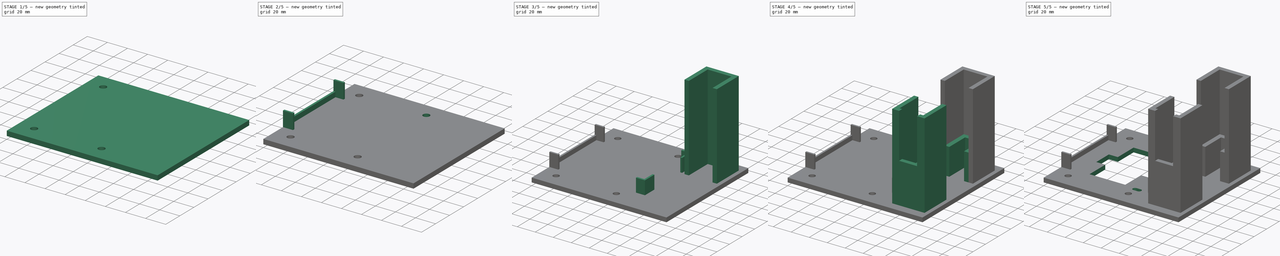
[diagram: build sequence overview — one tinted view per stage of 5, left to right]
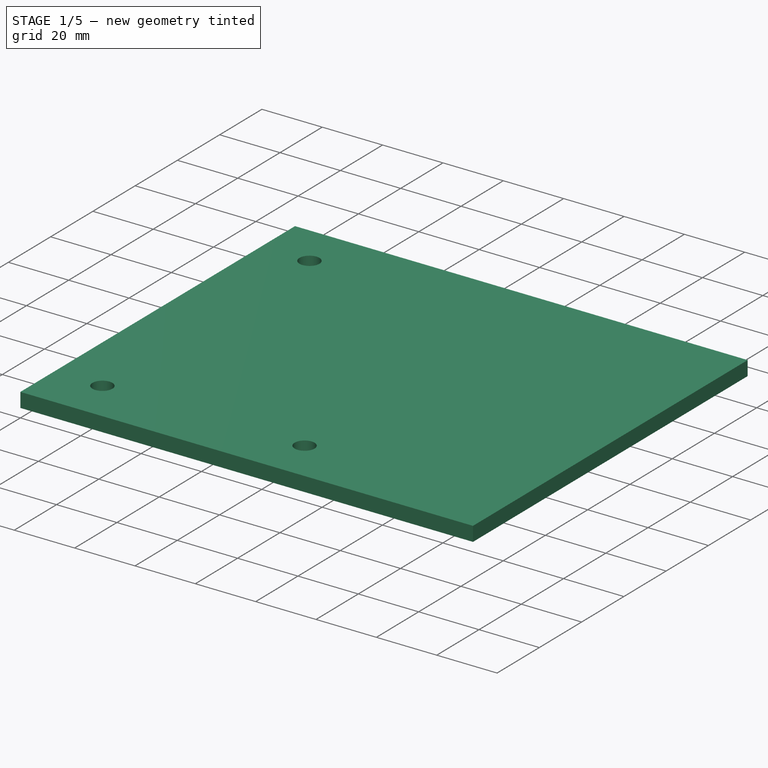
[diagram: stage 1 of 5 — iso view after this stage's code; geometry added in this stage tinted green]
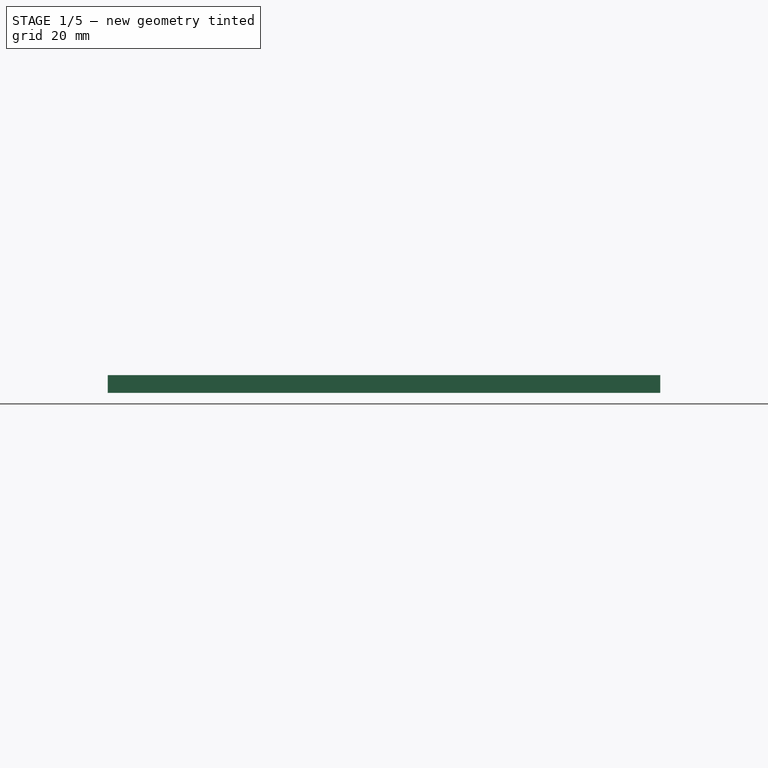
[diagram: stage 1 of 5 — front view after this stage's code; geometry added in this stage tinted green]
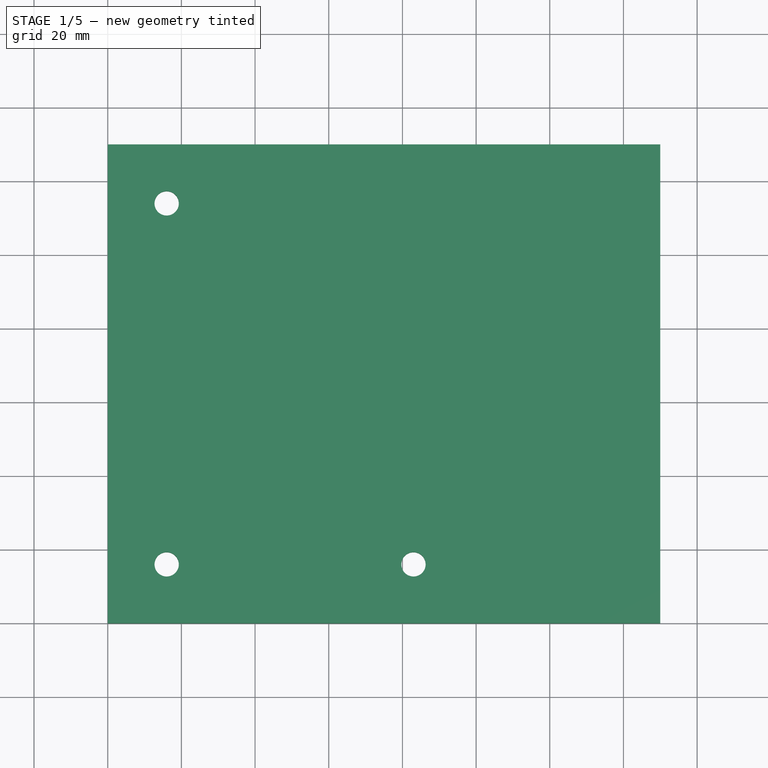
[diagram: stage 1 of 5 — top view after this stage's code; geometry added in this stage tinted green]
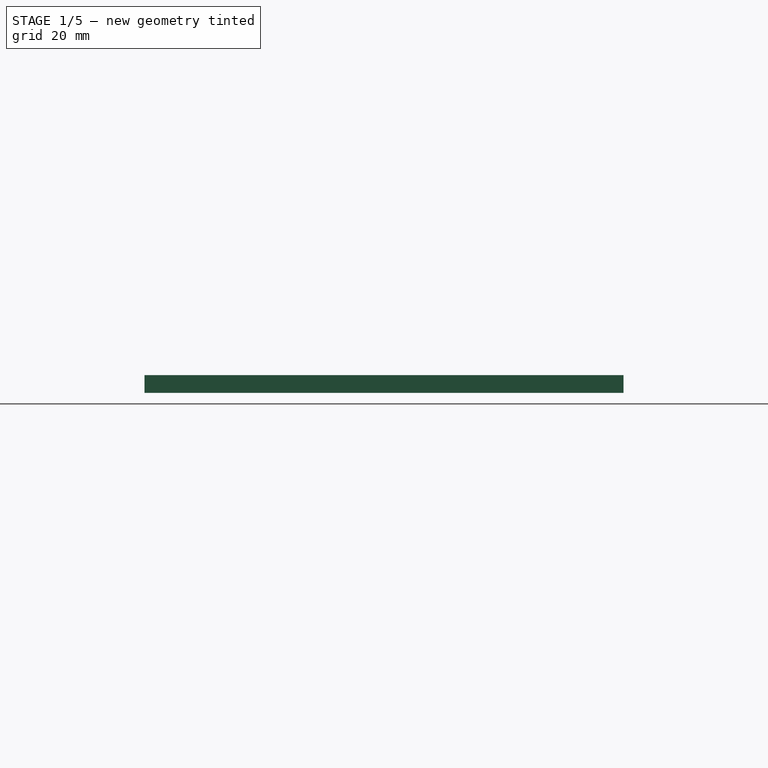
[diagram: stage 1 of 5 — right view after this stage's code; geometry added in this stage tinted green]
FCSTD DOCUMENT  (FreeCAD 0.19R24291 (Git))
Label: tp-link RPi cluster piece 2
License: All rights reserved
LicenseURL: http://en.wikipedia.org/wiki/All_rights_reserved
objects: Sketcher::SketchObject×19, PartDesign::Pad×10, PartDesign::Pocket×9, PartDesign::Body×1
note: 58 computed .brp shape members not serialized (recipe doc carries the construction recipe); baked Part::Feature solids carry a one-line shape summary decoded from their .brp

FEATURE [Sketcher::SketchObject] Sketch
  FullyConstrained = true
  MapMode = 5
  Support = -> [XY_Plane]
  sketch-geometry (4):
    g0: LineSegment StartX=0 StartY=0 StartZ=0 EndX=150 EndY=0 EndZ=0
    g1: LineSegment StartX=150 StartY=0 StartZ=0 EndX=150 EndY=130 EndZ=0
    g2: LineSegment StartX=150 StartY=130 StartZ=0 EndX=0 EndY=130 EndZ=0
    g3: LineSegment StartX=0 StartY=130 StartZ=0 EndX=0 EndY=0 EndZ=0
  constraints (11):
    c: Coincident(g0,g1)
    c: Coincident(g1,g2)
    c: Coincident(g2,g3)
    c: Coincident(g3,g0)
    c: Horizontal(g0)
    c: Horizontal(g2)
    c: Vertical(g1)
    c: Vertical(g3)
    c: Coincident(g0,g-1)
    c: DistanceX(g0,g0) = 150
    c: DistanceY(g3,g3) = 130
FEATURE [PartDesign::Pad] Pad
  Direction = (1,1,1)
  Length = 4.8
  Length2 = 100
  Profile = -> Sketch
  Type = 0
FEATURE [Sketcher::SketchObject] Sketch001
  FullyConstrained = true
  MapMode = 5
  Placement = pos=(0,0,4.8) rot=(0,0,1;0rad)
  Support = -> [Pad]
  sketch-geometry (1):
    g0: Circle CenterX=16 CenterY=16 CenterZ=0 NormalX=0 NormalY=0 NormalZ=1 AngleXU=0 Radius=3.3
  constraints (3):
    c: Diameter(g0) = 6.6
    c: DistanceX(g0) = 16
    c: DistanceY(g0) = 16
FEATURE [PartDesign::Pocket] Pocket
  BaseFeature = -> Pad
  Length = 5
  Length2 = 100
  Profile = -> Sketch001
  Type = 1
FEATURE [Sketcher::SketchObject] MirroredSketch
  FullyConstrained = true
  Placement = pos=(0,0,4.8) rot=(0,0,1;0rad)
  sketch-geometry (1):
    g0: Circle CenterX=16 CenterY=114 CenterZ=0 NormalX=0 NormalY=0 NormalZ=1 AngleXU=0 Radius=3.3
  constraints (3):
    c: Diameter(g0) = 6.6
    c: DistanceX(g0) = 16
    c: DistanceY(g0) = 114
FEATURE [Sketcher::SketchObject] MirroredSketch001
  FullyConstrained = true
  Placement = pos=(0,0,4.8) rot=(0,0,1;0rad)
  sketch-geometry (1):
    g0: Circle CenterX=83 CenterY=16 CenterZ=0 NormalX=0 NormalY=0 NormalZ=1 AngleXU=0 Radius=3.3
  constraints (3):
    c: Diameter(g0) = 6.6
    c: DistanceX(g0) = 83
    c: DistanceY(g0) = 16
FEATURE [Sketcher::SketchObject] MirroredSketch002
  FullyConstrained = true
  Placement = pos=(0,0,4.8) rot=(0,0,1;0rad)
  sketch-geometry (1):
    g0: Circle CenterX=83 CenterY=114 CenterZ=0 NormalX=0 NormalY=0 NormalZ=1 AngleXU=0 Radius=3.3
  constraints (3):
    c: Diameter(g0) = 6.6
    c: DistanceX(g0) = 83
    c: DistanceY(g0) = 114
FEATURE [PartDesign::Pocket] Pocket001
  BaseFeature = -> Pocket
  Length = 5
  Length2 = 100
  Profile = -> MirroredSketch
  Type = 1
FEATURE [PartDesign::Pocket] Pocket002
  BaseFeature = -> Pocket001
  Length = 5
  Length2 = 100
  Profile = -> MirroredSketch001
  Type = 1
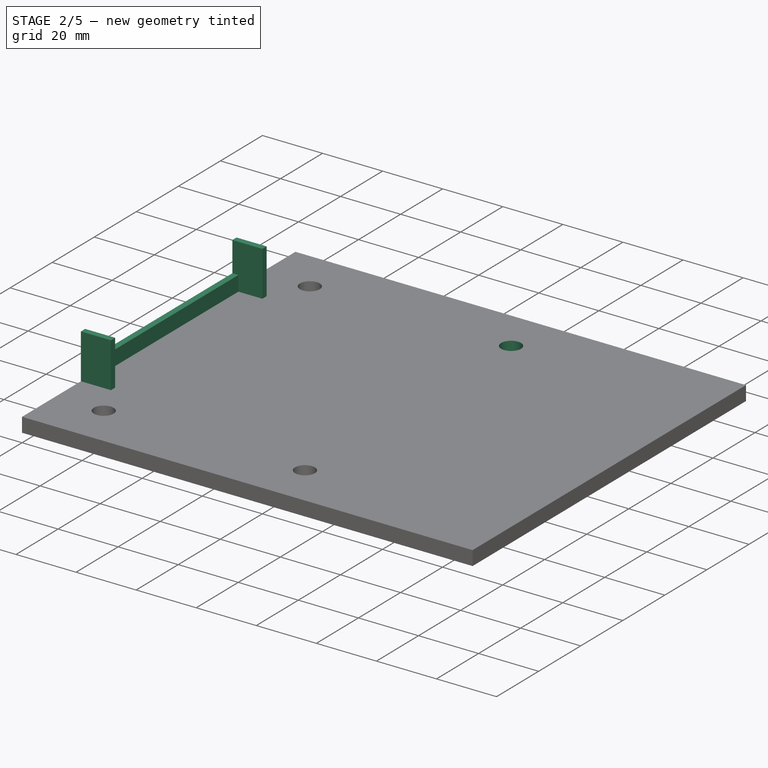
[diagram: stage 2 of 5 — iso view after this stage's code; geometry added in this stage tinted green]
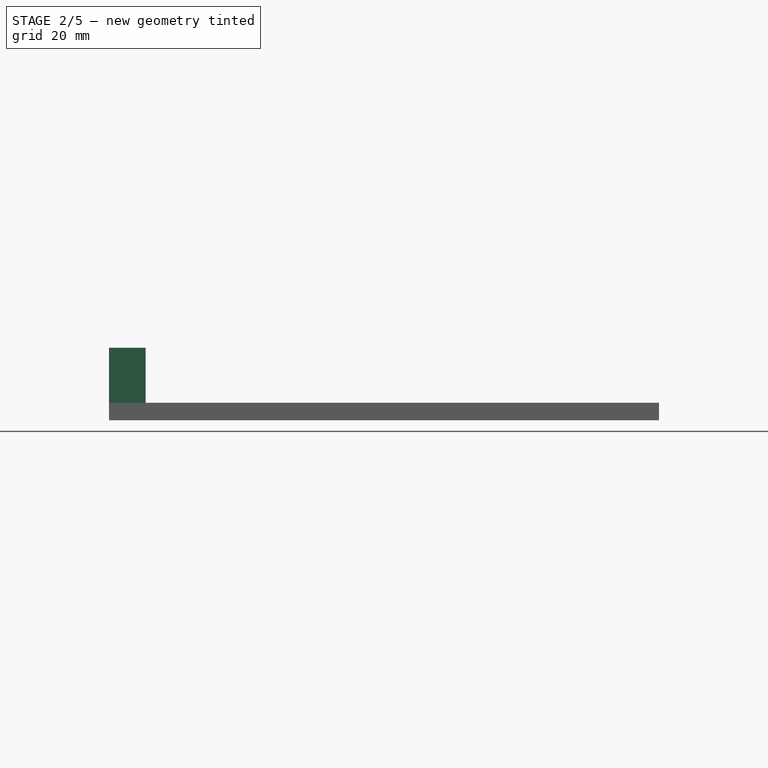
[diagram: stage 2 of 5 — front view after this stage's code; geometry added in this stage tinted green]
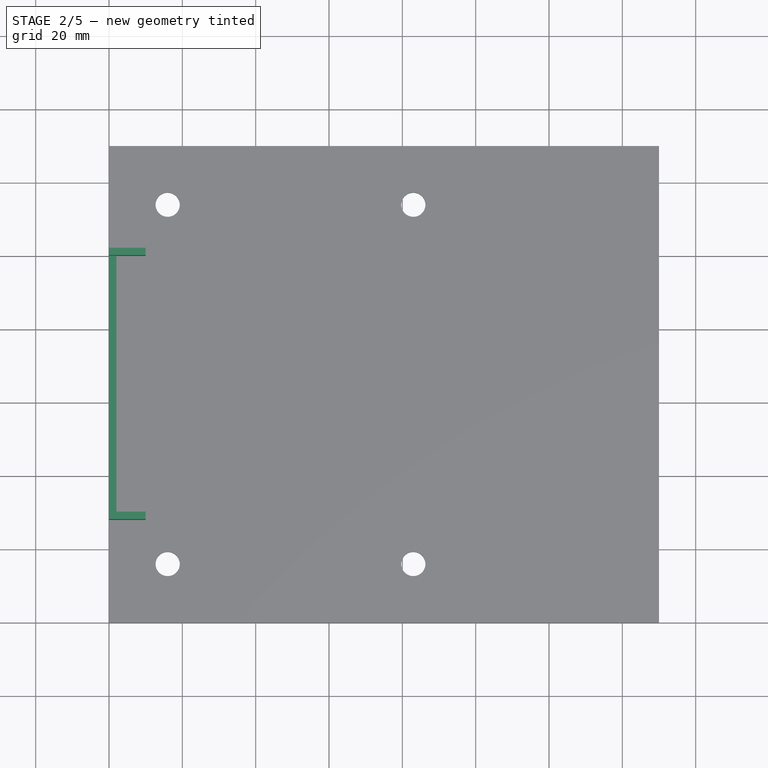
[diagram: stage 2 of 5 — top view after this stage's code; geometry added in this stage tinted green]
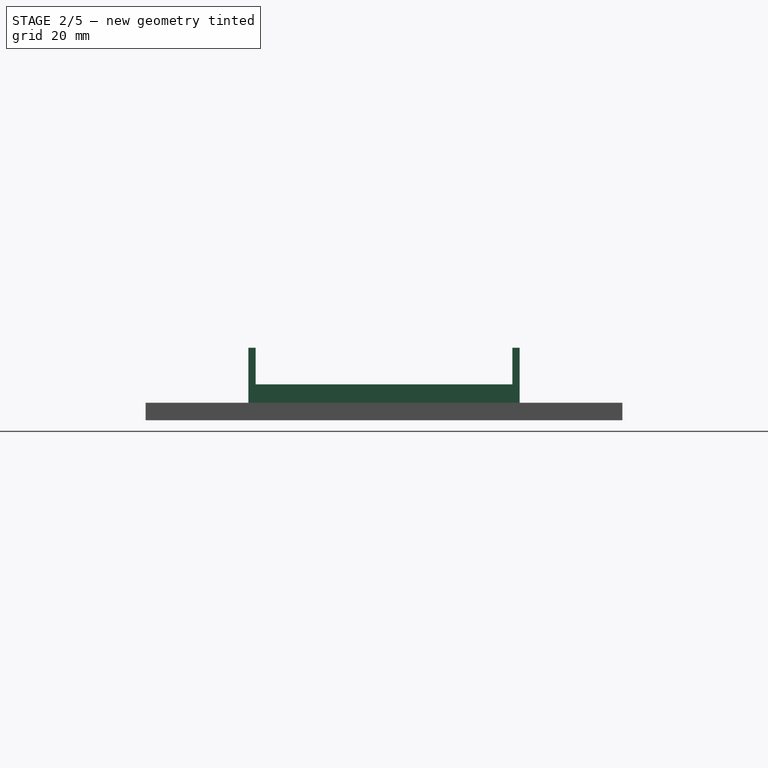
[diagram: stage 2 of 5 — right view after this stage's code; geometry added in this stage tinted green]
FEATURE [PartDesign::Pocket] Pocket003
  BaseFeature = -> Pocket002
  Length = 5
  Length2 = 100
  Profile = -> MirroredSketch002
  Type = 1
FEATURE [Sketcher::SketchObject] Sketch002
  FullyConstrained = true
  MapMode = 5
  Placement = pos=(0,0,4.8) rot=(0,0,1;0rad)
  Support = -> [Pocket003]
  sketch-geometry (4):
    g0: LineSegment StartX=0 StartY=100 StartZ=0 EndX=2 EndY=100 EndZ=0
    g1: LineSegment StartX=2 StartY=100 StartZ=0 EndX=2 EndY=30 EndZ=0
    g2: LineSegment StartX=2 StartY=30 StartZ=0 EndX=0 EndY=30 EndZ=0
    g3: LineSegment StartX=0 StartY=30 StartZ=0 EndX=0 EndY=100 EndZ=0
  constraints (12):
    c: Coincident(g0,g1)
    c: Coincident(g1,g2)
    c: Coincident(g2,g3)
    c: Coincident(g3,g0)
    c: Horizontal(g0)
    c: Horizontal(g2)
    c: Vertical(g1)
    c: Vertical(g3)
    c: PointOnObject(g0,g-2)
    c: DistanceY(g1,g1) = 70
    c: DistanceX(g2,g2) = 2
    c: DistanceY(g1) = 30
FEATURE [PartDesign::Pad] Pad001
  BaseFeature = -> Pocket003
  Direction = (1,1,1)
  Length = 5
  Length2 = 100
  Profile = -> Sketch002
  Type = 0
FEATURE [Sketcher::SketchObject] Sketch003
  FullyConstrained = true
  MapMode = 5
  Placement = pos=(0,0,4.8) rot=(0,0,1;0rad)
  Support = -> [Pad001]
  sketch-geometry (4):
    g0: LineSegment StartX=0 StartY=30 StartZ=0 EndX=10 EndY=30 EndZ=0
    g1: LineSegment StartX=10 StartY=30 StartZ=0 EndX=10 EndY=28 EndZ=0
    g2: LineSegment StartX=10 StartY=28 StartZ=0 EndX=0 EndY=28 EndZ=0
    g3: LineSegment StartX=0 StartY=28 StartZ=0 EndX=0 EndY=30 EndZ=0
  constraints (12):
    c: Coincident(g0,g1)
    c: Coincident(g1,g2)
    c: Coincident(g2,g3)
    c: Coincident(g3,g0)
    c: Horizontal(g0)
    c: Horizontal(g2)
    c: Vertical(g1)
    c: Vertical(g3)
    c: PointOnObject(g0,g-2)
    c: DistanceX(g2,g2) = 10
    c: DistanceY(g1,g1) = 2
    c: DistanceY(g1) = 28
FEATURE [PartDesign::Pad] Pad002
  BaseFeature = -> Pad001
  Direction = (1,1,1)
  Length = 15
  Length2 = 100
  Profile = -> Sketch003
  Type = 0
FEATURE [Sketcher::SketchObject] MirroredSketch003
  FullyConstrained = true
  Placement = pos=(0,0,4.8) rot=(0,0,1;0rad)
  sketch-geometry (4):
    g0: LineSegment StartX=0 StartY=102 StartZ=0 EndX=10 EndY=102 EndZ=0
    g1: LineSegment StartX=10 StartY=102 StartZ=0 EndX=10 EndY=100 EndZ=0
    g2: LineSegment StartX=10 StartY=100 StartZ=0 EndX=0 EndY=100 EndZ=0
    g3: LineSegment StartX=0 StartY=100 StartZ=0 EndX=0 EndY=102 EndZ=0
  constraints (12):
    c: Coincident(g0,g1)
    c: Coincident(g1,g2)
    c: Coincident(g2,g3)
    c: Coincident(g3,g0)
    c: Horizontal(g0)
    c: Horizontal(g2)
    c: Vertical(g1)
    c: Vertical(g3)
    c: PointOnObject(g0,g-2)
    c: DistanceX(g0,g0) = 10
    c: DistanceY(g1,g1) = 2
    c: DistanceY(g0) = 102
FEATURE [PartDesign::Pad] Pad003
  BaseFeature = -> Pad002
  Direction = (1,1,1)
  Length = 15
  Length2 = 100
  Profile = -> MirroredSketch003
  Type = 0
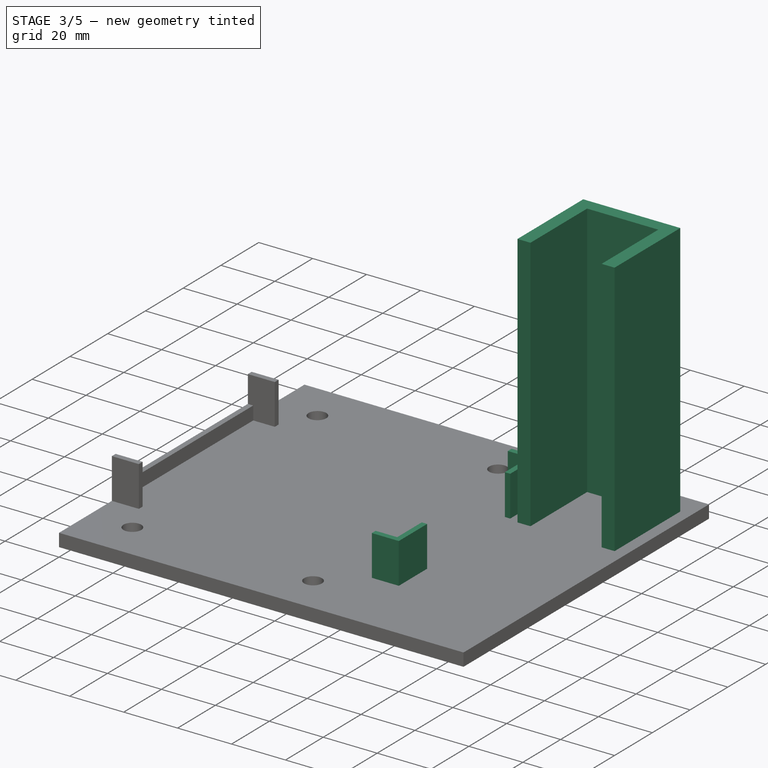
[diagram: stage 3 of 5 — iso view after this stage's code; geometry added in this stage tinted green]
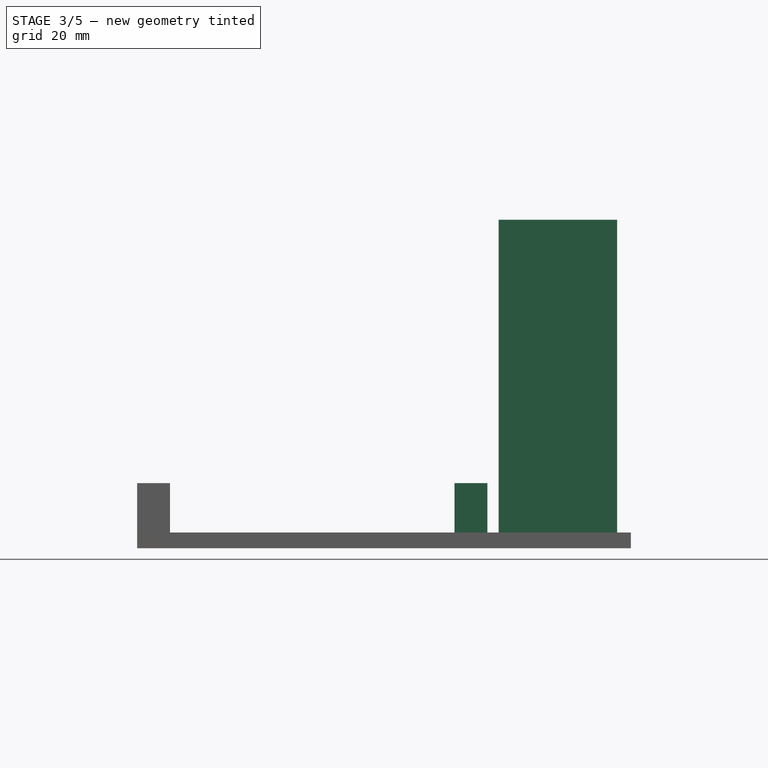
[diagram: stage 3 of 5 — front view after this stage's code; geometry added in this stage tinted green]
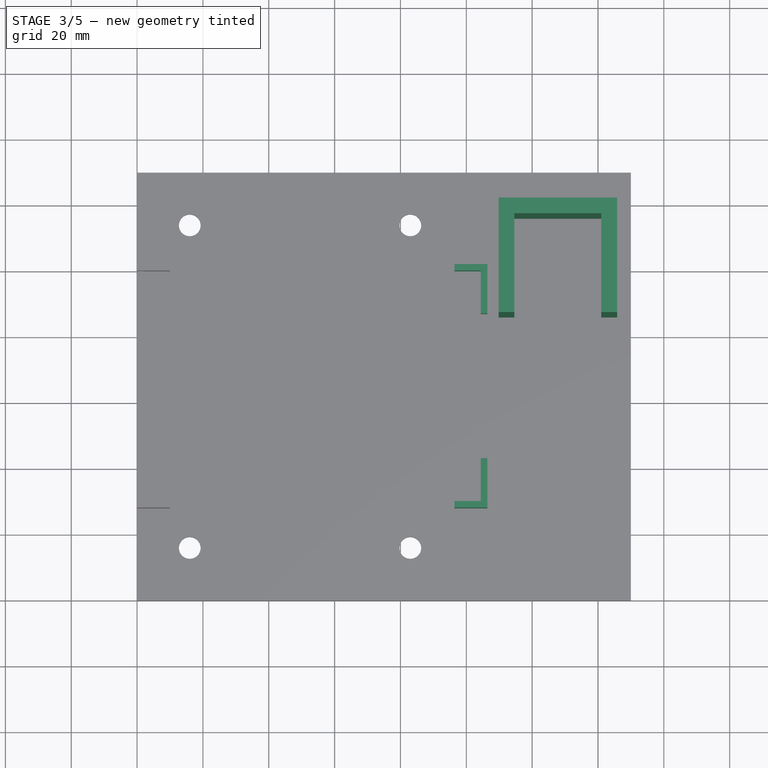
[diagram: stage 3 of 5 — top view after this stage's code; geometry added in this stage tinted green]
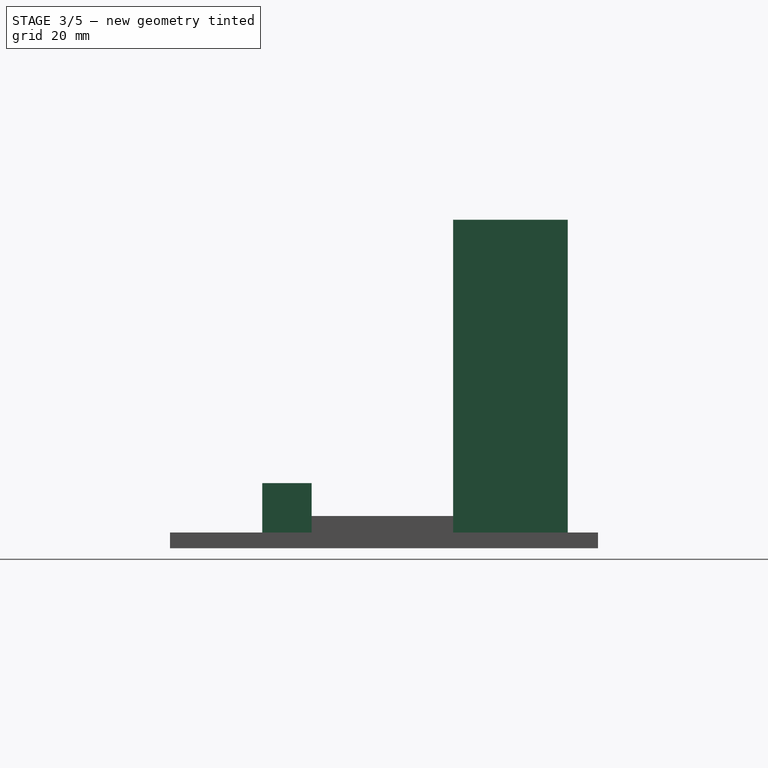
[diagram: stage 3 of 5 — right view after this stage's code; geometry added in this stage tinted green]
FEATURE [Sketcher::SketchObject] Sketch004
  FullyConstrained = true
  MapMode = 5
  Placement = pos=(0,0,4.8) rot=(0,0,1;0rad)
  Support = -> [Pad003]
  sketch-geometry (6):
    g0: LineSegment StartX=96.4 StartY=100 StartZ=0 EndX=96.4 EndY=102 EndZ=0
    g1: LineSegment StartX=106.4 StartY=102 StartZ=0 EndX=106.4 EndY=87 EndZ=0
    g2: LineSegment StartX=104.4 StartY=87 StartZ=0 EndX=104.4 EndY=100 EndZ=0
    g3: LineSegment StartX=96.4 StartY=102 StartZ=0 EndX=106.4 EndY=102 EndZ=0
    g4: LineSegment StartX=96.4 StartY=100 StartZ=0 EndX=104.4 EndY=100 EndZ=0
    g5: LineSegment StartX=104.4 StartY=87 StartZ=0 EndX=106.4 EndY=87 EndZ=0
  constraints (18):
    c: Vertical(g0)
    c: Vertical(g1)
    c: Vertical(g2)
    c: Coincident(g3,g0)
    c: Coincident(g3,g1)
    c: Horizontal(g3)
    c: Coincident(g4,g0)
    c: Coincident(g4,g2)
    c: Coincident(g5,g2)
    c: Coincident(g5,g1)
    c: DistanceX(g3,g3) = 10
    c: DistanceY(g1,g1) = 15
    c: DistanceY(g0,g0) = 2
    c: DistanceY(g2,g2) = 13
    c: DistanceX(g5,g5) = 2
    c: Angle(g4,g0) = 1.5708
    c: DistanceX(g2) = 104.4
    c: DistanceY(g2) = 100
FEATURE [PartDesign::Pad] Pad004
  BaseFeature = -> Pad003
  Direction = (1,1,1)
  Length = 15
  Length2 = 100
  Profile = -> Sketch004
  Type = 0
FEATURE [Sketcher::SketchObject] Sketch005
  FullyConstrained = true
  MapMode = 5
  Placement = pos=(0,0,4.8) rot=(0,0,1;0rad)
  Support = -> [Pad004]
  sketch-geometry (6):
    g0: LineSegment StartX=96.4 StartY=30 StartZ=0 EndX=104.4 EndY=30 EndZ=0
    g1: LineSegment StartX=104.4 StartY=30 StartZ=0 EndX=104.4 EndY=43 EndZ=0
    g2: LineSegment StartX=104.4 StartY=43 StartZ=0 EndX=106.4 EndY=43 EndZ=0
    g3: LineSegment StartX=106.4 StartY=43 StartZ=0 EndX=106.4 EndY=28 EndZ=0
    g4: LineSegment StartX=106.4 StartY=28 StartZ=0 EndX=96.4 EndY=28 EndZ=0
    g5: LineSegment StartX=96.4 StartY=28 StartZ=0 EndX=96.4 EndY=30 EndZ=0
  constraints (19):
    c: Horizontal(g0)
    c: Coincident(g1,g0)
    c: Vertical(g1)
    c: Horizontal(g2)
    c: Coincident(g3,g2)
    c: Vertical(g3)
    c: Coincident(g4,g3)
    c: Horizontal(g4)
    c: Coincident(g5,g4)
    c: Coincident(g5,g0)
    c: DistanceX(g4,g4) = 10
    c: DistanceX(g0,g0) = 8
    c: DistanceX(g2,g2) = 2
    c: DistanceY(g3,g3) = 15
    c: DistanceY(g1,g1) = 13
    c: DistanceY(g5,g5) = 2
    c: Angle(g4,g5) = 1.5708
    c: DistanceX(g0) = 104.4
    c: DistanceY(g0) = 30
FEATURE [PartDesign::Pad] Pad005
  BaseFeature = -> Pad004
  Direction = (1,1,1)
  Length = 15
  Length2 = 100
  Profile = -> Sketch005
  Type = 0
FEATURE [Sketcher::SketchObject] Sketch006
  FullyConstrained = true
  MapMode = 5
  Placement = pos=(0,0,4.8) rot=(0,0,1;0rad)
  Support = -> [Pad005]
  sketch-geometry (8):
    g0: LineSegment StartX=109.8 StartY=86 StartZ=0 EndX=109.8 EndY=120.8 EndZ=0
    g1: LineSegment StartX=109.8 StartY=120.8 StartZ=0 EndX=145.8 EndY=120.8 EndZ=0
    g2: LineSegment StartX=145.8 StartY=120.8 StartZ=0 EndX=145.8 EndY=86 EndZ=0
    g3: LineSegment StartX=145.8 StartY=86 StartZ=0 EndX=141 EndY=86 EndZ=0
    g4: LineSegment StartX=141 StartY=86 StartZ=0 EndX=141 EndY=116 EndZ=0
    g5: LineSegment StartX=141 StartY=116 StartZ=0 EndX=114.6 EndY=116 EndZ=0
    g6: LineSegment StartX=114.6 StartY=116 StartZ=0 EndX=114.6 EndY=86 EndZ=0
    g7: LineSegment StartX=114.6 StartY=86 StartZ=0 EndX=109.8 EndY=86 EndZ=0
  constraints (24):
    c: Vertical(g0)
    c: Coincident(g1,g0)
    c: Horizontal(g1)
    c: Vertical(g2)
    c: Coincident(g3,g2)
    c: Coincident(g4,g3)
    c: Vertical(g4)
    c: Coincident(g5,g4)
    c: Horizontal(g5)
    c: Vertical(g6)
    c: Coincident(g7,g0)
    c: Horizontal(g7)
    c: DistanceX(g5,g5) = 26.4
    c: DistanceX(g7,g7) = 4.8
    c: DistanceX(g3,g3) = 4.8
    c: DistanceY(g6,g6) = 30
    c: DistanceY(g0,g0) = 34.8
    c: Coincident(g6,g5)
    c: Coincident(g2,g1)
    c: DistanceY(g2,g2) = 34.8
    c: DistanceY(g4,g4) = 30
    c: Coincident(g6,g7)
    c: DistanceX(g4) = 141
    c: DistanceY(g4) = 116
FEATURE [Sketcher::SketchObject] MirroredSketch005
  FullyConstrained = true
  Placement = pos=(0,0,4.8) rot=(0,0,1;0rad)
  sketch-geometry (8):
    g0: LineSegment StartX=145.8 StartY=44 StartZ=0 EndX=145.8 EndY=9.2 EndZ=0
    g1: LineSegment StartX=145.8 StartY=9.2 StartZ=0 EndX=109.8 EndY=9.2 EndZ=0
    g2: LineSegment StartX=109.8 StartY=9.2 StartZ=0 EndX=109.8 EndY=44 EndZ=0
    g3: LineSegment StartX=109.8 StartY=44 StartZ=0 EndX=114.6 EndY=44 EndZ=0
    g4: LineSegment StartX=114.6 StartY=44 StartZ=0 EndX=114.6 EndY=14 EndZ=0
    g5: LineSegment StartX=114.6 StartY=14 StartZ=0 EndX=141 EndY=14 EndZ=0
    g6: LineSegment StartX=141 StartY=14 StartZ=0 EndX=141 EndY=44 EndZ=0
    g7: LineSegment StartX=141 StartY=44 StartZ=0 EndX=145.8 EndY=44 EndZ=0
  constraints (24):
    c: Vertical(g0)
    c: Coincident(g1,g0)
    c: Horizontal(g1)
    c: Vertical(g2)
    c: Coincident(g3,g2)
    c: Coincident(g4,g3)
    c: Vertical(g4)
    c: Coincident(g5,g4)
    c: Horizontal(g5)
    c: Vertical(g6)
    c: Coincident(g7,g0)
    c: Horizontal(g7)
    c: Coincident(g6,g5)
    c: Coincident(g2,g1)
    c: Coincident(g6,g7)
    c: DistanceX(g3,g3) = 4.8
    c: DistanceX(g7,g7) = 4.8
    c: DistanceX(g5,g5) = 26.4
    c: DistanceY(g2,g2) = 34.8
    c: DistanceY(g4,g4) = 30
    c: DistanceY(g6,g6) = 30
    c: DistanceY(g0,g0) = 34.8
    c: DistanceX(g5) = 141
    c: DistanceY(g5) = 14
FEATURE [PartDesign::Pad] Pad006
  BaseFeature = -> Pad005
  Direction = (1,1,1)
  Length = 95
  Length2 = 100
  Profile = -> Sketch006
  Type = 0
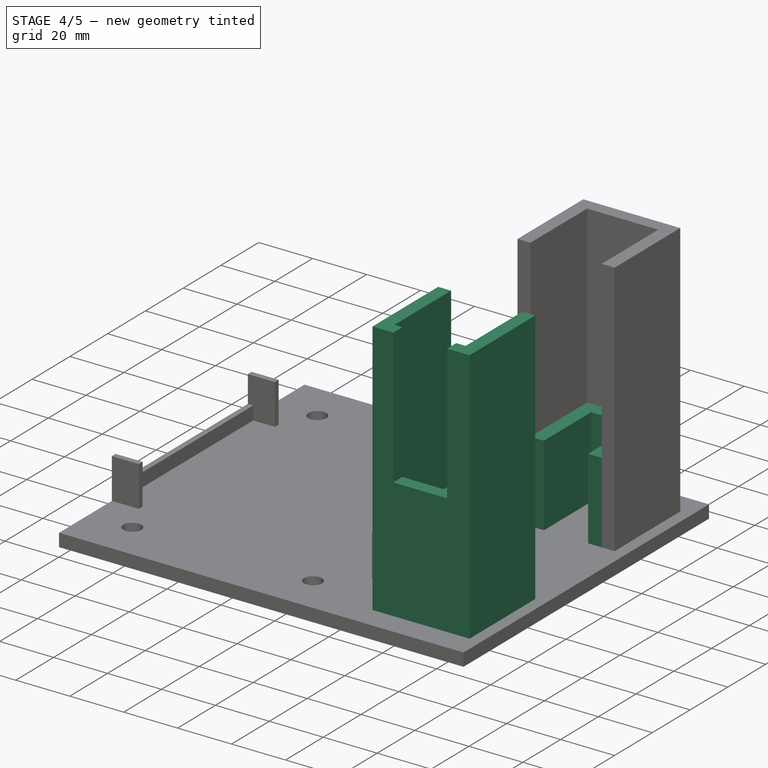
[diagram: stage 4 of 5 — iso view after this stage's code; geometry added in this stage tinted green]
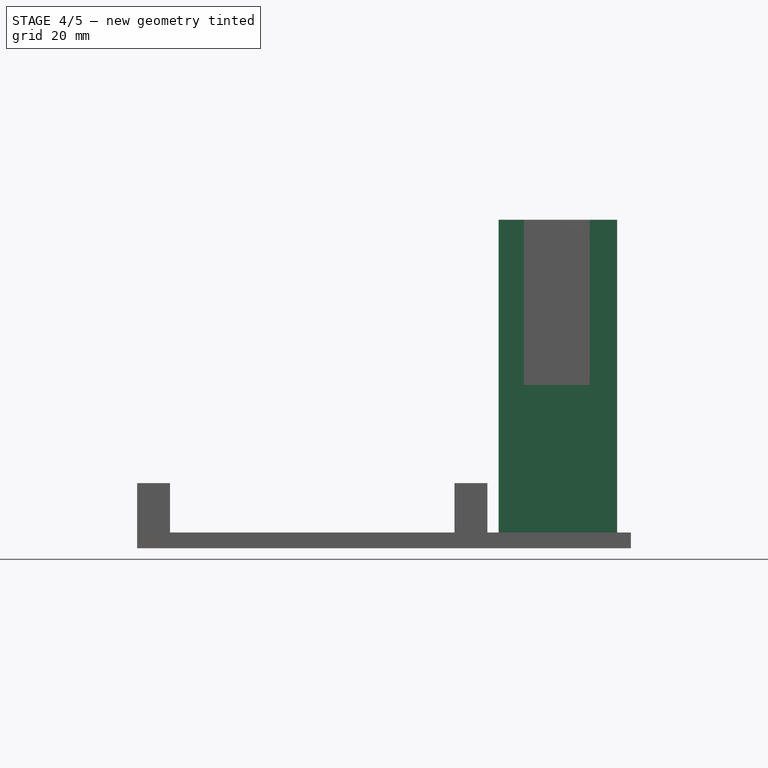
[diagram: stage 4 of 5 — front view after this stage's code; geometry added in this stage tinted green]
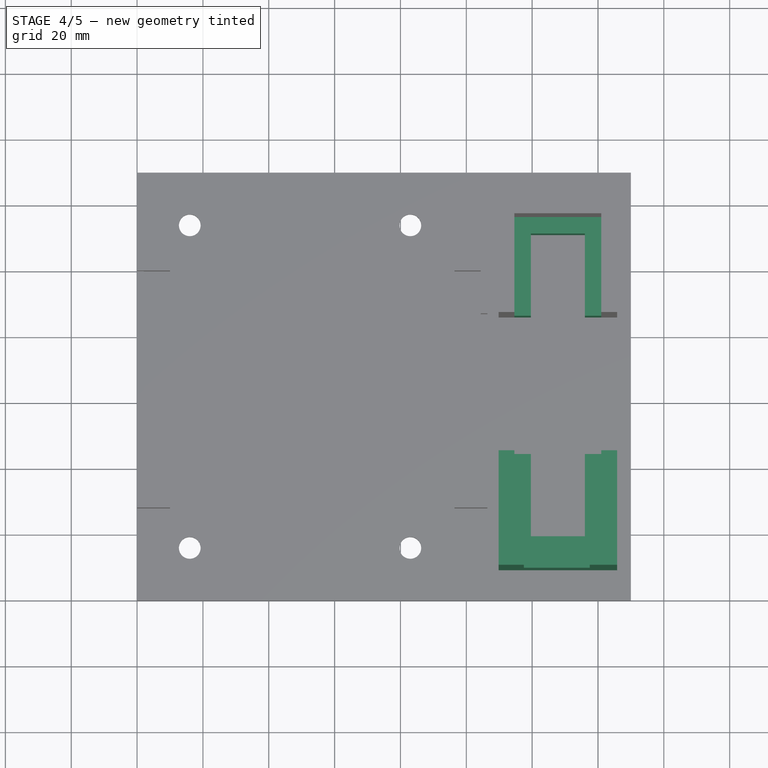
[diagram: stage 4 of 5 — top view after this stage's code; geometry added in this stage tinted green]
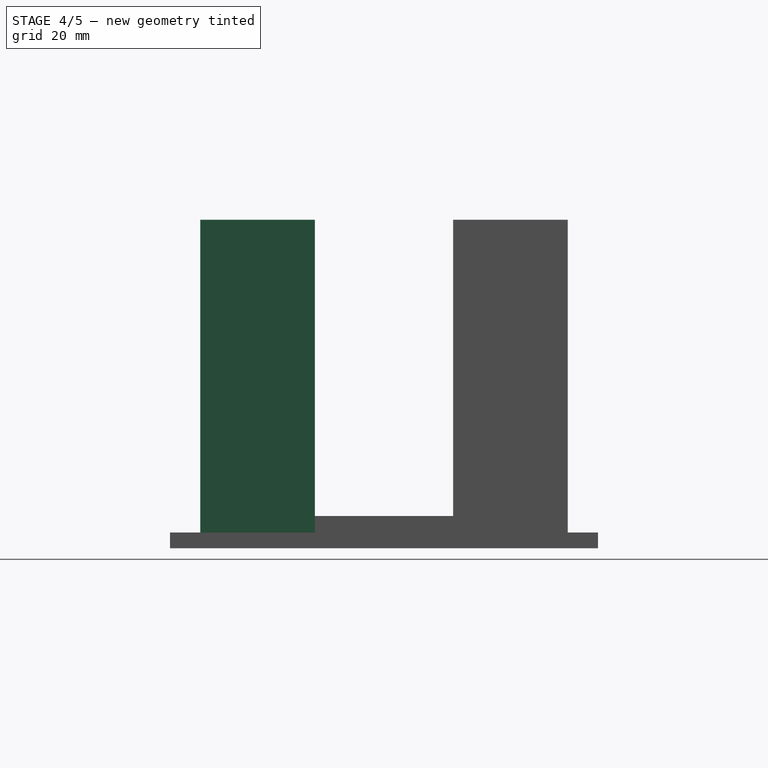
[diagram: stage 4 of 5 — right view after this stage's code; geometry added in this stage tinted green]
FEATURE [PartDesign::Pad] Pad007
  BaseFeature = -> Pad006
  Direction = (1,1,1)
  Length = 95
  Length2 = 100
  Profile = -> MirroredSketch005
  Type = 0
FEATURE [Sketcher::SketchObject] Sketch007
  FullyConstrained = true
  MapMode = 5
  Placement = pos=(0,9.2,0) rot=(1,0,0;1.5708rad)
  Support = -> [Pad007]
  sketch-geometry (4):
    g0: LineSegment StartX=137.5 StartY=49.6 StartZ=0 EndX=117.5 EndY=49.6 EndZ=0
    g1: LineSegment StartX=117.5 StartY=49.6 StartZ=0 EndX=117.5 EndY=109.6 EndZ=0
    g2: LineSegment StartX=117.5 StartY=109.6 StartZ=0 EndX=137.5 EndY=109.6 EndZ=0
    g3: LineSegment StartX=137.5 StartY=109.6 StartZ=0 EndX=137.5 EndY=49.6 EndZ=0
  constraints (12):
    c: Coincident(g0,g1)
    c: Coincident(g1,g2)
    c: Coincident(g2,g3)
    c: Coincident(g3,g0)
    c: Horizontal(g0)
    c: Horizontal(g2)
    c: Vertical(g1)
    c: Vertical(g3)
    c: DistanceX(g2,g2) = 20
    c: DistanceY(g3,g3) = 60
    c: DistanceX(g0) = 137.5
    c: DistanceY(g0) = 49.6
FEATURE [PartDesign::Pocket] Pocket004
  BaseFeature = -> Pad007
  Length = 5
  Length2 = 100
  Profile = -> Sketch007
  Type = 0
FEATURE [Sketcher::SketchObject] Sketch008
  FullyConstrained = true
  MapMode = 5
  Placement = pos=(0,0,4.8) rot=(0,0,1;0rad)
  Support = -> [Pocket004]
  sketch-geometry (8):
    g0: LineSegment StartX=114.6 StartY=86 StartZ=0 EndX=119.6 EndY=86 EndZ=0
    g1: LineSegment StartX=119.6 StartY=86 StartZ=0 EndX=119.6 EndY=111 EndZ=0
    g2: LineSegment StartX=119.6 StartY=111 StartZ=0 EndX=136 EndY=111 EndZ=0
    g3: LineSegment StartX=136 StartY=111 StartZ=0 EndX=136 EndY=86 EndZ=0
    g4: LineSegment StartX=136 StartY=86 StartZ=0 EndX=141 EndY=86 EndZ=0
    g5: LineSegment StartX=141 StartY=86 StartZ=0 EndX=141 EndY=116 EndZ=0
    g6: LineSegment StartX=141 StartY=116 StartZ=0 EndX=114.6 EndY=116 EndZ=0
    g7: LineSegment StartX=114.6 StartY=116 StartZ=0 EndX=114.6 EndY=86 EndZ=0
  constraints (25):
    c: Horizontal(g0)
    c: Vertical(g1)
    c: Horizontal(g2)
    c: Vertical(g3)
    c: Coincident(g5,g4)
    c: Vertical(g5)
    c: Horizontal(g6)
    c: Coincident(g7,g0)
    c: Vertical(g7)
    c: DistanceY(g7,g7) = 30
    c: DistanceY(g5,g5) = 30
    c: DistanceY(g1,g1) = 25
    c: DistanceY(g3,g3) = 25
    c: DistanceX(g6,g6) = 26.4
    c: DistanceX(g0,g0) = 5
    c: DistanceX(g4,g4) = 5
    c: DistanceX(g2,g2) = 16.4
    c: Coincident(g4,g3)
    c: Coincident(g1,g0)
    c: Angle(g5,g4) = 1.5708
    c: Coincident(g2,g1)
    c: Coincident(g3,g2)
    c: Coincident(g5,g6)
    c: DistanceX(g5) = 141
    c: DistanceY(g5) = 116
FEATURE [Sketcher::SketchObject] MirroredSketch006
  FullyConstrained = true
  Placement = pos=(0,0,4.8) rot=(0,0,1;0rad)
  sketch-geometry (8):
    g0: LineSegment StartX=114.6 StartY=44 StartZ=0 EndX=119.6 EndY=44 EndZ=0
    g1: LineSegment StartX=119.6 StartY=44 StartZ=0 EndX=119.6 EndY=19 EndZ=0
    g2: LineSegment StartX=119.6 StartY=19 StartZ=0 EndX=136 EndY=19 EndZ=0
    g3: LineSegment StartX=136 StartY=19 StartZ=0 EndX=136 EndY=44 EndZ=0
    g4: LineSegment StartX=136 StartY=44 StartZ=0 EndX=141 EndY=44 EndZ=0
    g5: LineSegment StartX=141 StartY=44 StartZ=0 EndX=141 EndY=14 EndZ=0
    g6: LineSegment StartX=141 StartY=14 StartZ=0 EndX=114.6 EndY=14 EndZ=0
    g7: LineSegment StartX=114.6 StartY=14 StartZ=0 EndX=114.6 EndY=44 EndZ=0
  constraints (25):
    c: Horizontal(g0)
    c: Vertical(g1)
    c: Horizontal(g2)
    c: Vertical(g3)
    c: Coincident(g5,g4)
    c: Vertical(g5)
    c: Horizontal(g6)
    c: Coincident(g7,g0)
    c: Vertical(g7)
    c: Coincident(g4,g3)
    c: Coincident(g1,g0)
    c: Angle(g5,g4) = -1.5708
    c: Coincident(g2,g1)
    c: Coincident(g3,g2)
    c: Coincident(g5,g6)
    c: DistanceX(g6,g6) = 26.4
    c: DistanceX(g2,g2) = 16.4
    c: DistanceX(g4,g4) = 5
    c: DistanceX(g0,g0) = 5
    c: DistanceY(g7,g7) = 30
    c: DistanceY(g1,g1) = 25
    c: DistanceY(g3,g3) = 25
    c: DistanceY(g5,g5) = 30
    c: DistanceX(g5) = 141
    c: DistanceY(g5) = 14
FEATURE [PartDesign::Pad] Pad008
  BaseFeature = -> Pocket004
  Direction = (1,1,1)
  Length = 30
  Length2 = 100
  Profile = -> Sketch008
  Type = 0
FEATURE [PartDesign::Pad] Pad009
  BaseFeature = -> Pad008
  Direction = (1,1,1)
  Length = 30
  Length2 = 100
  Profile = -> MirroredSketch006
  Type = 0
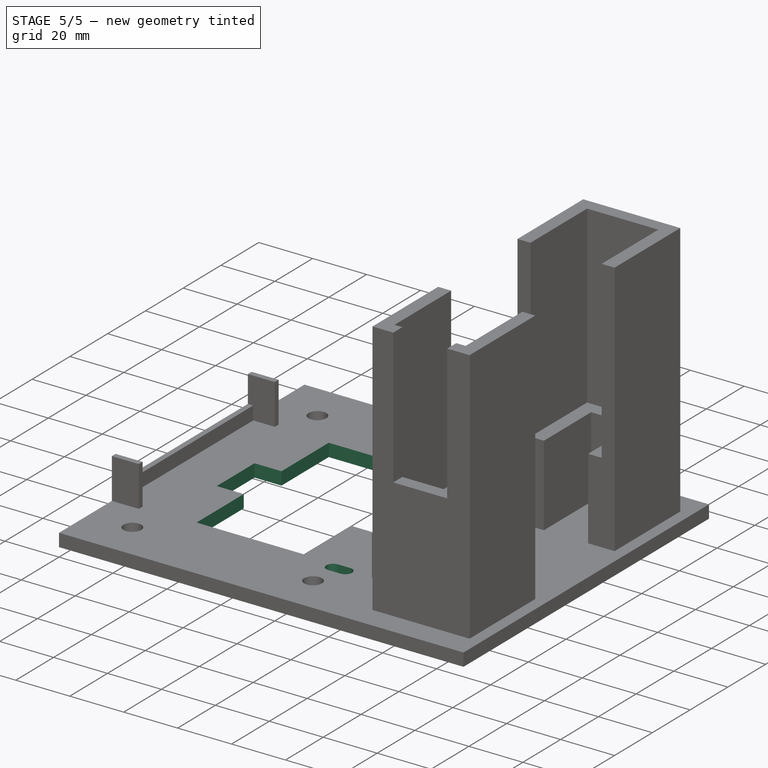
[diagram: stage 5 of 5 — iso view after this stage's code; geometry added in this stage tinted green]
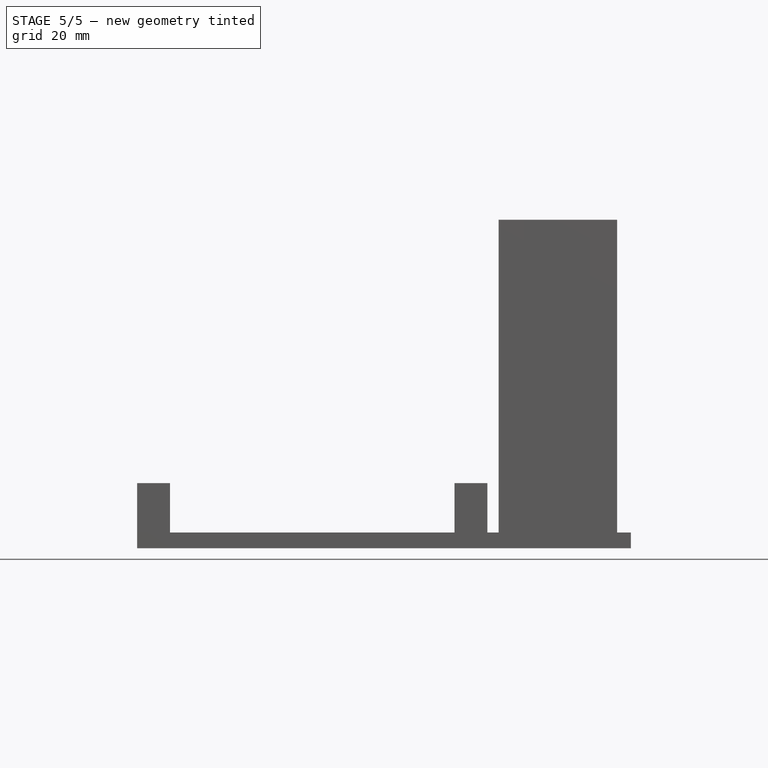
[diagram: stage 5 of 5 — front view after this stage's code; geometry added in this stage tinted green]
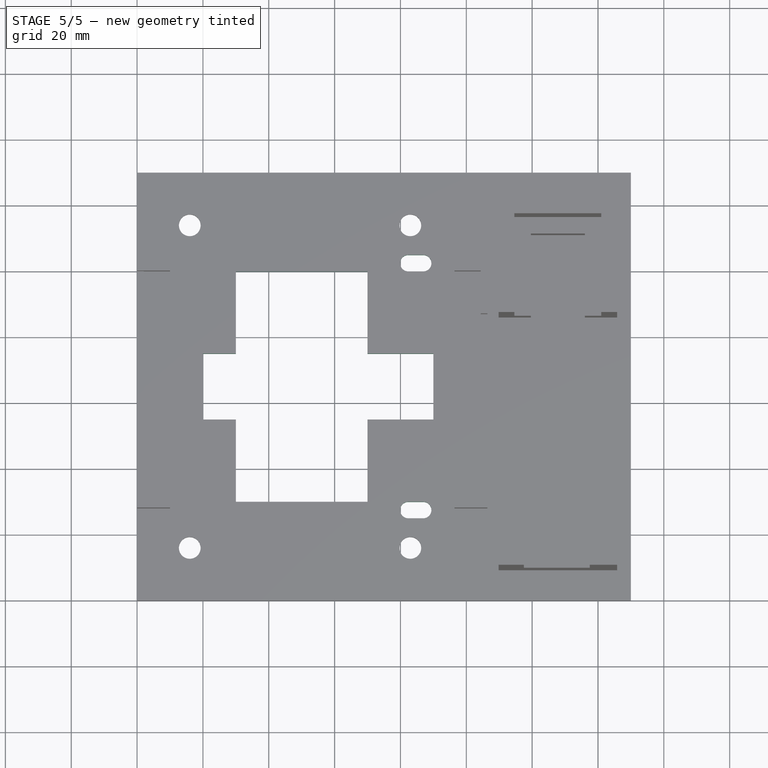
[diagram: stage 5 of 5 — top view after this stage's code; geometry added in this stage tinted green]
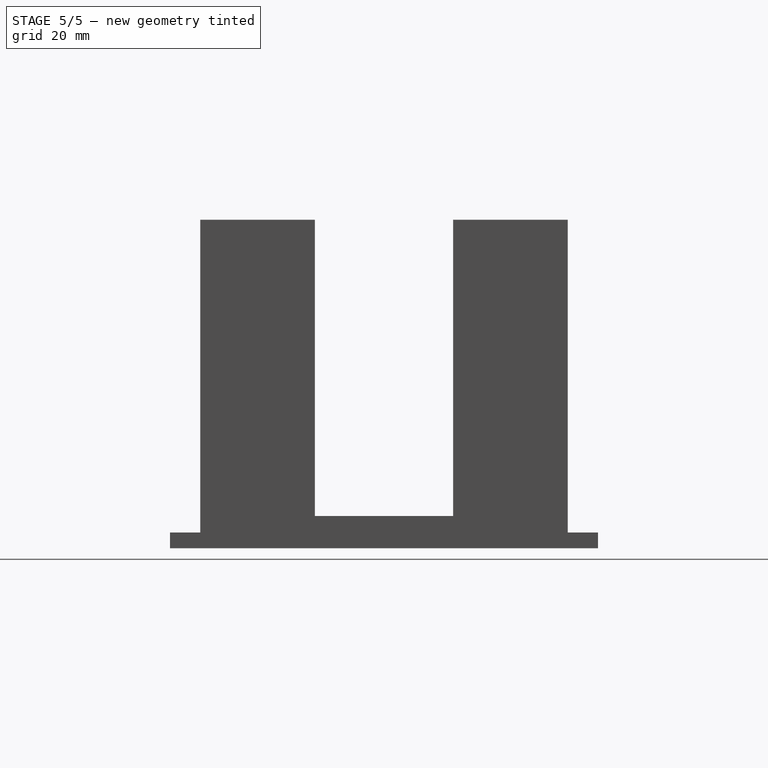
[diagram: stage 5 of 5 — right view after this stage's code; geometry added in this stage tinted green]
FEATURE [Sketcher::SketchObject] Sketch009
  FullyConstrained = true
  MapMode = 5
  Placement = pos=(0,0,4.8) rot=(0,0,1;0rad)
  Support = -> [Pad009]
  sketch-geometry (4):
    g0: LineSegment StartX=30 StartY=100 StartZ=0 EndX=70 EndY=100 EndZ=0
    g1: LineSegment StartX=70 StartY=100 StartZ=0 EndX=70 EndY=30 EndZ=0
    g2: LineSegment StartX=70 StartY=30 StartZ=0 EndX=30 EndY=30 EndZ=0
    g3: LineSegment StartX=30 StartY=30 StartZ=0 EndX=30 EndY=100 EndZ=0
  constraints (12):
    c: Coincident(g0,g1)
    c: Coincident(g1,g2)
    c: Coincident(g2,g3)
    c: Coincident(g3,g0)
    c: Horizontal(g0)
    c: Horizontal(g2)
    c: Vertical(g1)
    c: Vertical(g3)
    c: DistanceX(g0,g0) = 40
    c: DistanceY(g1,g1) = 70
    c: DistanceX(g1) = 70
    c: DistanceY(g1) = 30
FEATURE [PartDesign::Pocket] Pocket005
  BaseFeature = -> Pad009
  Length = 5
  Length2 = 100
  Profile = -> Sketch009
  Type = 1
FEATURE [Sketcher::SketchObject] Sketch010
  FullyConstrained = true
  MapMode = 5
  Placement = pos=(0,0,4.8) rot=(0,0,1;0rad)
  Support = -> [Pocket005]
  sketch-geometry (4):
    g0: LineSegment StartX=90 StartY=75 StartZ=0 EndX=20 EndY=75 EndZ=0
    g1: LineSegment StartX=20 StartY=75 StartZ=0 EndX=20 EndY=55 EndZ=0
    g2: LineSegment StartX=20 StartY=55 StartZ=0 EndX=90 EndY=55 EndZ=0
    g3: LineSegment StartX=90 StartY=55 StartZ=0 EndX=90 EndY=75 EndZ=0
  constraints (12):
    c: Coincident(g0,g1)
    c: Coincident(g1,g2)
    c: Coincident(g2,g3)
    c: Coincident(g3,g0)
    c: Horizontal(g0)
    c: Horizontal(g2)
    c: Vertical(g1)
    c: Vertical(g3)
    c: DistanceY(g1,g1) = 20
    c: DistanceX(g0,g0) = 70
    c: DistanceX(g0) = 20
    c: DistanceY(g0) = 75
FEATURE [PartDesign::Pocket] Pocket006
  BaseFeature = -> Pocket005
  Length = 5
  Length2 = 100
  Profile = -> Sketch010
  Type = 1
FEATURE [Sketcher::SketchObject] Sketch011
  FullyConstrained = true
  MapMode = 5
  Placement = pos=(0,0,4.8) rot=(0,0,1;0rad)
  Support = -> [Pocket006]
  sketch-geometry (4):
    g0: ArcOfCircle CenterX=82.4 CenterY=27.5 CenterZ=0 NormalX=0 NormalY=0 NormalZ=1 AngleXU=0 Radius=2.5 StartAngle=1.5708 EndAngle=4.71239
    g1: ArcOfCircle CenterX=86.9 CenterY=27.5 CenterZ=0 NormalX=0 NormalY=0 NormalZ=1 AngleXU=0 Radius=2.5 StartAngle=4.71239 EndAngle=7.85398
    g2: LineSegment StartX=82.4 StartY=25 StartZ=0 EndX=86.9 EndY=25 EndZ=0
    g3: LineSegment StartX=82.4 StartY=30 StartZ=0 EndX=86.9 EndY=30 EndZ=0
  constraints (10):
    c: Tangent(g0,g3) = 1.5708
    c: Tangent(g0,g2) = -1.5708
    c: Tangent(g2,g1) = -1.5708
    c: Tangent(g3,g1) = 1.5708
    c: Horizontal(g2)
    c: Equal(g0,g1)
    c: DistanceX(g3,g3) = 4.5
    c: Radius(g0) = 2.5
    c: DistanceX(g0) = 82.4
    c: DistanceY(g0) = 27.5
FEATURE [Sketcher::SketchObject] MirroredSketch007
  FullyConstrained = true
  Placement = pos=(0,0,4.8) rot=(0,0,1;0rad)
  sketch-geometry (4):
    g0: ArcOfCircle CenterX=82.4 CenterY=102.5 CenterZ=0 NormalX=0 NormalY=0 NormalZ=1 AngleXU=0 Radius=2.5 StartAngle=1.5708 EndAngle=4.71239
    g1: ArcOfCircle CenterX=86.9 CenterY=102.5 CenterZ=0 NormalX=0 NormalY=0 NormalZ=1 AngleXU=0 Radius=2.5 StartAngle=4.71239 EndAngle=7.85398
    g2: LineSegment StartX=82.4 StartY=105 StartZ=0 EndX=86.9 EndY=105 EndZ=0
    g3: LineSegment StartX=82.4 StartY=100 StartZ=0 EndX=86.9 EndY=100 EndZ=0
  constraints (10):
    c: Tangent(g0,g3) = -1.5708
    c: Tangent(g0,g2) = 1.5708
    c: Tangent(g2,g1) = 1.5708
    c: Tangent(g3,g1) = -1.5708
    c: Horizontal(g2)
    c: Equal(g0,g1)
    c: Radius(g0) = 2.5
    c: DistanceX(g2,g2) = 4.5
    c: DistanceX(g0) = 82.4
    c: DistanceY(g0) = 102.5
FEATURE [PartDesign::Pocket] Pocket007
  BaseFeature = -> Pocket006
  Length = 5
  Length2 = 100
  Profile = -> Sketch011
  Type = 1
FEATURE [PartDesign::Pocket] Pocket008
  BaseFeature = -> Pocket007
  Length = 5
  Length2 = 100
  Profile = -> MirroredSketch007
  Type = 1
FEATURE [PartDesign::Body] Body
  Group = -> [Sketch,Pad,Sketch001,Pocket,MirroredSketch,MirroredSketch001,MirroredSketch002,Pocket001,Pocket002,Pocket003,Sketch002,Pad001,Sketch003,Pad002,MirroredSketch003,Pad003,Sketch004,Pad004,Sketch005,Pad005,Sketch006,MirroredSketch005,Pad006,Pad007,Sketch007,Pocket004,Sketch008,MirroredSketch006,Pad008,Pad009,Sketch009,Pocket005,Sketch010,Pocket006,Sketch011,MirroredSketch007,Pocket007,Pocket008]
  Origin = -> Origin
  Tip = -> Pocket008
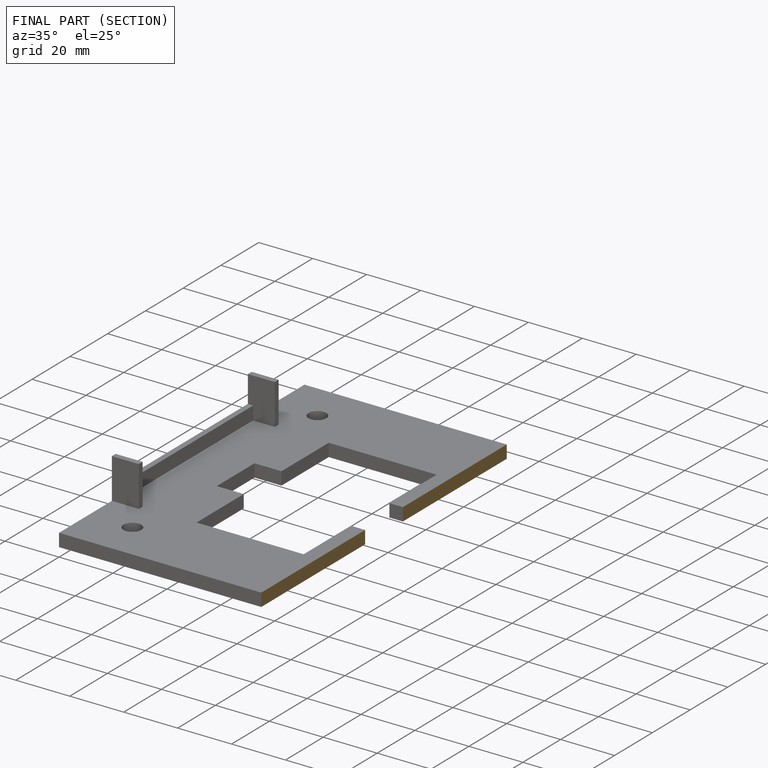
[diagram: finished part — half-section view (interior)]
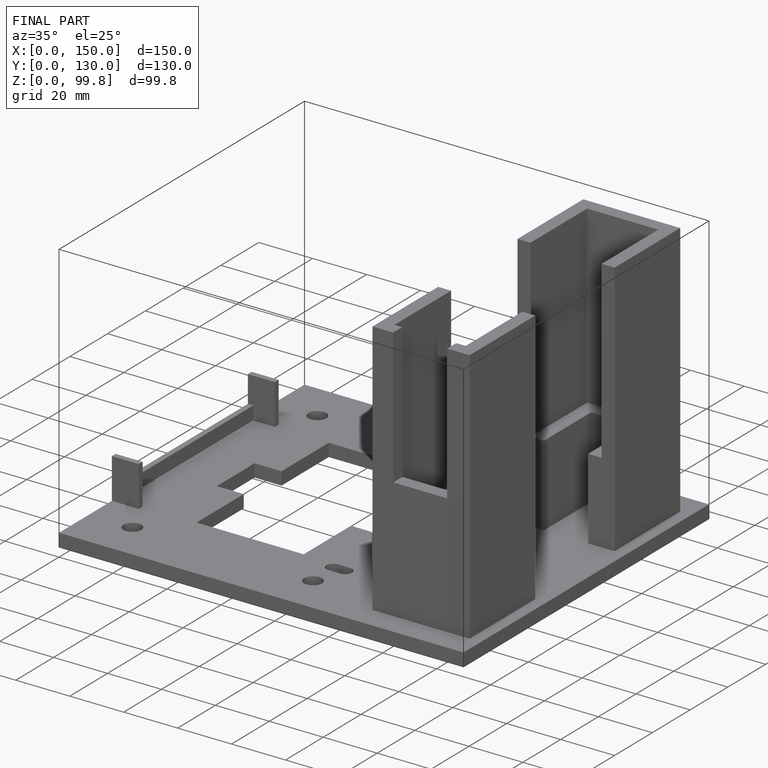
[diagram: finished part — iso view with bounding-box wireframe]
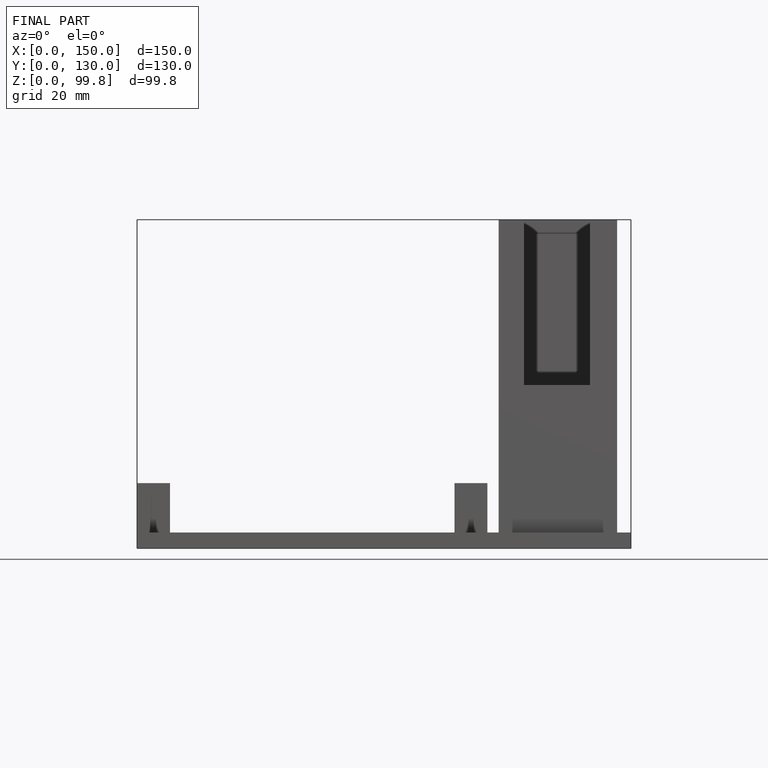
[diagram: finished part — front view with bounding-box wireframe]
